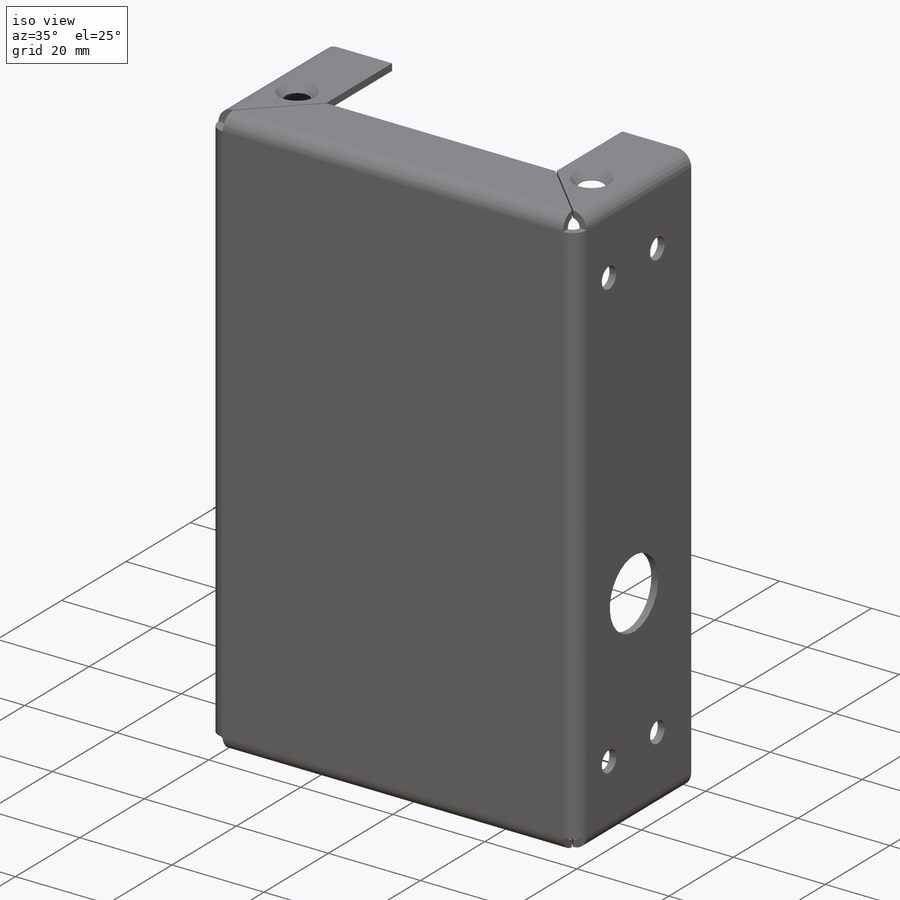
[diagram: iso view]
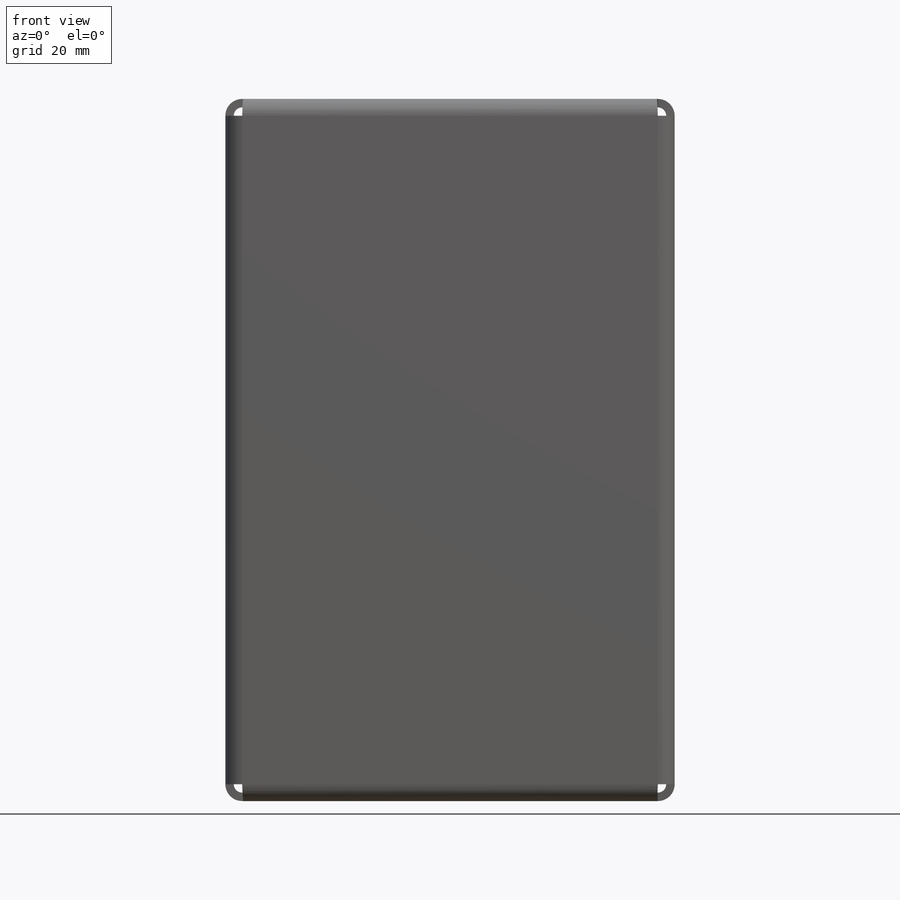
[diagram: front view]
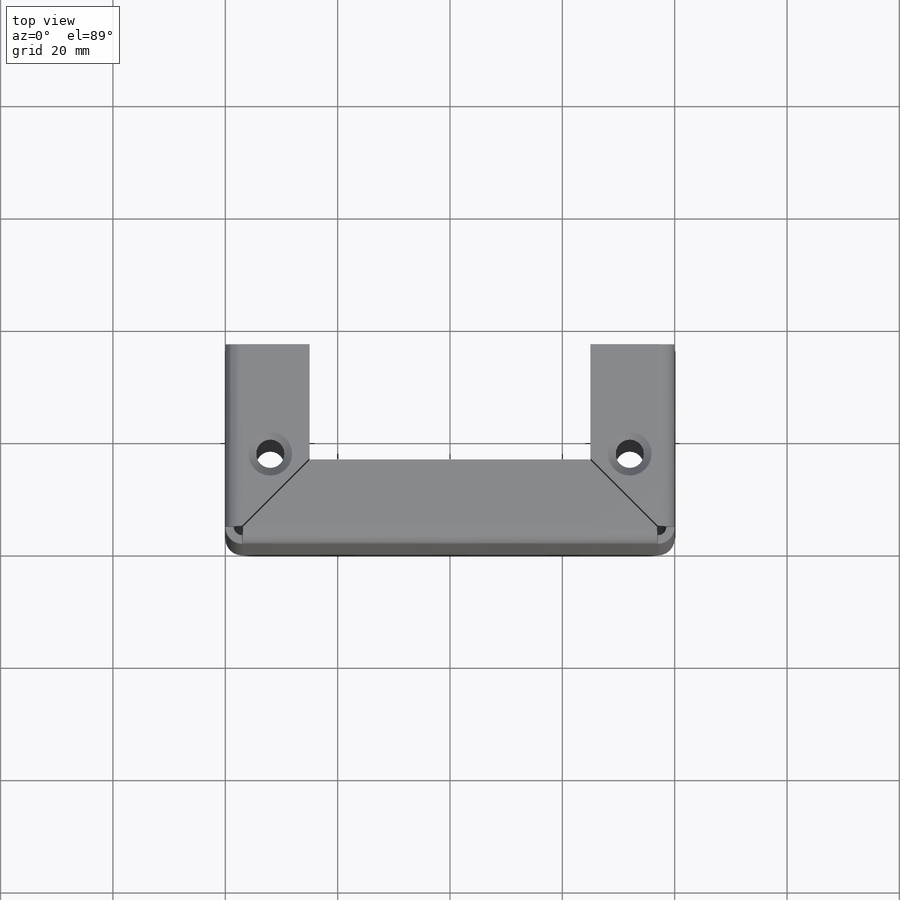
[diagram: top view]
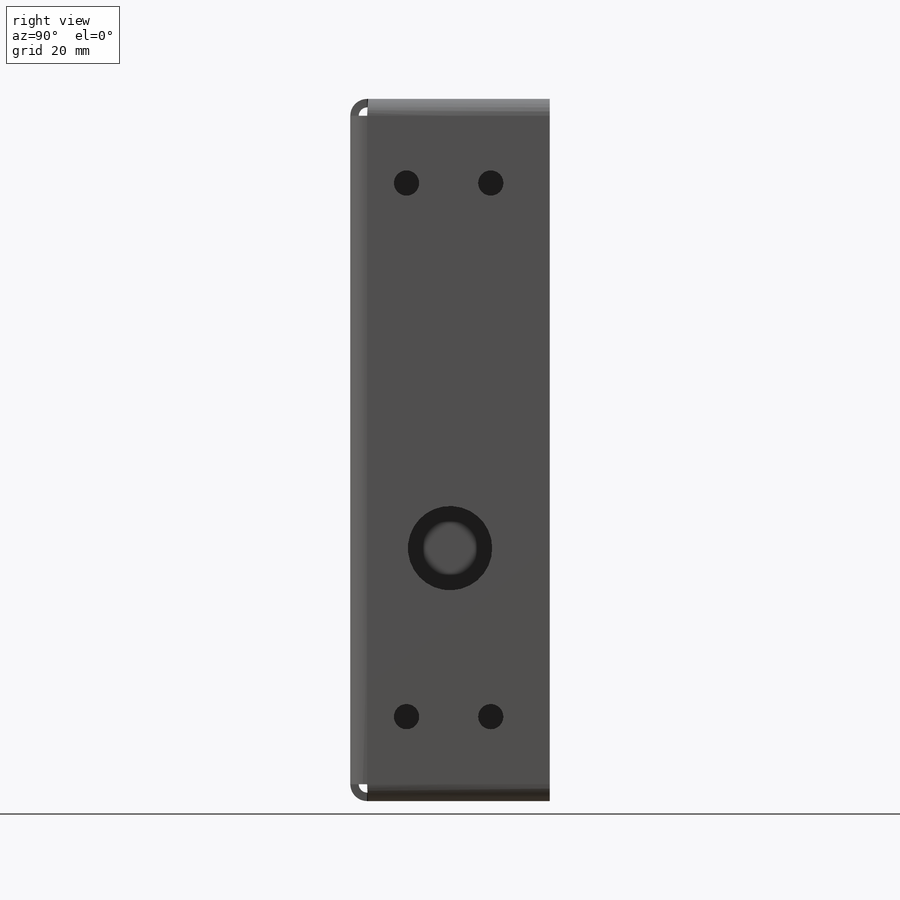
[diagram: right view]
SOLIDWORKS PART (.sldprt)
format: sldprt  version: not decoded by parser v0  size: 443,904 bytes
history: native  units: mm
features: sketch x11, chamfer x8, plane x3, sheet_metal_op x3, cut_extrude x3, material x1 + 2 further entries (+9 scaffold rows collapsed)
feature tree (40):
  scaffold x9  (default folders/planes/origin — collapsed)
  material  "Liga 1060"
  plane  "Plano frontal"
  plane  "Plano superior"
  plane  "Plano direito"
  sketch  "Esboço2"  dims[D1=80.0mm D2=35.5mm]
  sheet_metal_op  "Chapa metálica1"
  sheet_metal_op  "Flange-base1"
  sheet_metal_op  "DobradeBase2"
  sketch  "Esboço16"
  sketch  "Esboço17"
  sketch  "Esboço18"
  sketch  "Esboço19"
  sketch  "Esboço20"
  sketch  "Esboço21"  dims[c1.D1=1.5mm c1.D4=90.0deg c1.D5=3.0 c1.D8=0.75mm c1.D9=0.75mm c2.D1=1.5mm c2.D4=90.0deg c2.D5=4.0 c2.D8=0.75mm c2.D9=0.75mm c3.D1=1.5mm c3.D4=90.0deg c3.D5=5.0 c3.D8=0.75mm c3.D9=0.75mm c4.D1=1.5mm c4.D4=90.0deg c4.D5=6.0 c4.D8=0.75mm c4.D9=0.75mm c5.D1=1.5mm c5.D4=90.0deg c5.D5=7.0 c5.D8=0.75mm c5.D9=0.75mm c6.D1=1.5mm c6.D4=90.0deg c6.D5=8.0 c6.D8=0.75mm c6.D9=0.75mm c7.D1=1.5mm c7.D2=500.0mm c7.D3=0.0mm c7.D6=10.0mm c7.D7=15.0mm c7.D8=0.25mm]
  sketch  "Esboço24"  dims[c1.D1=15.0mm c1.D4=6.0mm c1.D3=15.0mm c2.D4=~5.632381mm c2.D5=~7.420695mm c2.D6=~10.299326mm c2.D7=~7.420695mm c2.D8=~10.299326mm c2.D9=~5.632381mm c2.D10=~8.40947mm c2.D11=~8.40947mm c2.D12=~8.40947mm c2.D13=~8.40947mm c2.D14=4.2mm c2.D15=4.2mm c2.D16=4.2mm c2.D17=4.2mm c2.D18=4.2mm c2.D2=45.0mm c2.D3=17.5mm c3.D6=15.0mm c3.D3=17.75mm c3.D4=17.75mm c3.D5=~11.833333mm c4.D6=~23.666667mm c4.D7=15.0mm c4.D8=15.0mm c4.D9=62.0mm c4.D10=~11.833333mm c4.D11=~23.666667mm c4.D12=15.0mm c4.D13=15.0mm]
  cut_extrude  "Corte-extrusão1"  [1 undecoded]
  sketch  "Esboço27"  dims[c1.D1=~4.364367mm c1.D2=~4.364367mm c1.D3=5.0mm c2.D1=64.0mm c2.D2=16.0mm]
  cut_extrude  "Corte-extrusão2"  [1 undecoded]
  sketch  "Esboço28"  dims[c1.D1=~6.010812mm c1.D2=~6.010812mm c1.D4=4.5mm c2.D1=10.0mm c2.D2=15.0mm c2.D3=95.0mm]
  cut_extrude  "Corte-extrusão3"  [1 undecoded]
  chamfer  "Chanfro1"  Distance=1.4mm Angle=45deg
  "Padrão-Plano1"
  sketch  "Curva-Linhas1"
  chamfer  "Planificar-<DobradeBase2>1"  [1 undecoded]
  "Transformação de esboço1"
  chamfer  "Planificar-<DobradeAresta1>1"  [1 undecoded]
  chamfer  "Planificar-<DobradeAresta2>1"  [1 undecoded]
  chamfer  "Planificar-<DobradeAresta3>1"  [1 undecoded]
  chamfer  "Planificar-<DobradeAresta4>1"  [1 undecoded]
  chamfer  "Planificar-<DobradeAresta5>1"  [1 undecoded]
  chamfer  "Planificar-<DobradeAresta6>1"  [1 undecoded]
decode coverage: 6 of 25 modeling features carry decoded parameters; 2 rows unclassified (native names shown)
note: ~ marks probable driven/reference dimensions
note: 10 parameter values undecoded
summary: no parameter record found for 10 features
note: suppression state not decoded; provenance and decode notes live in map.json
